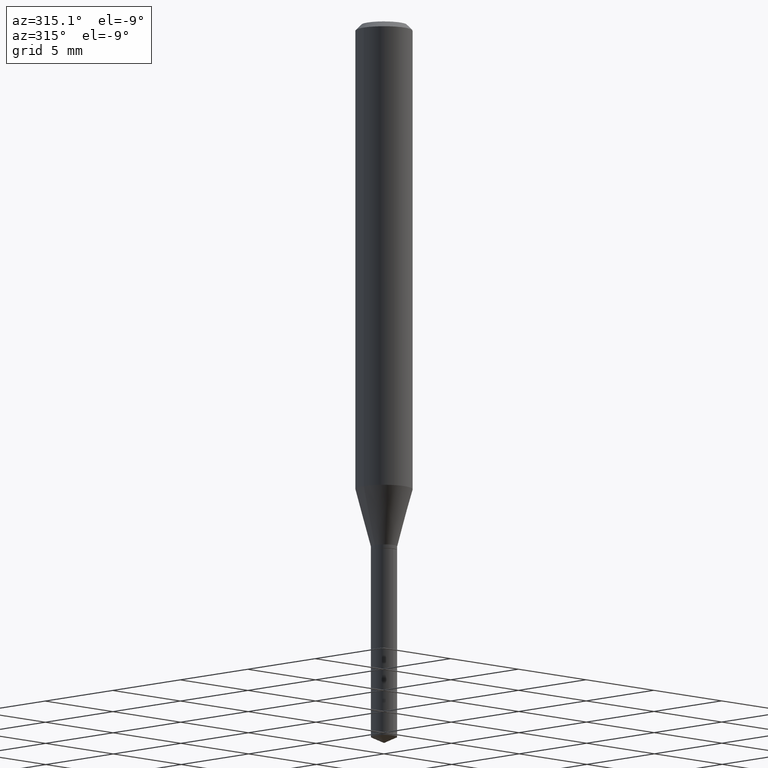
[diagram: clean part render]
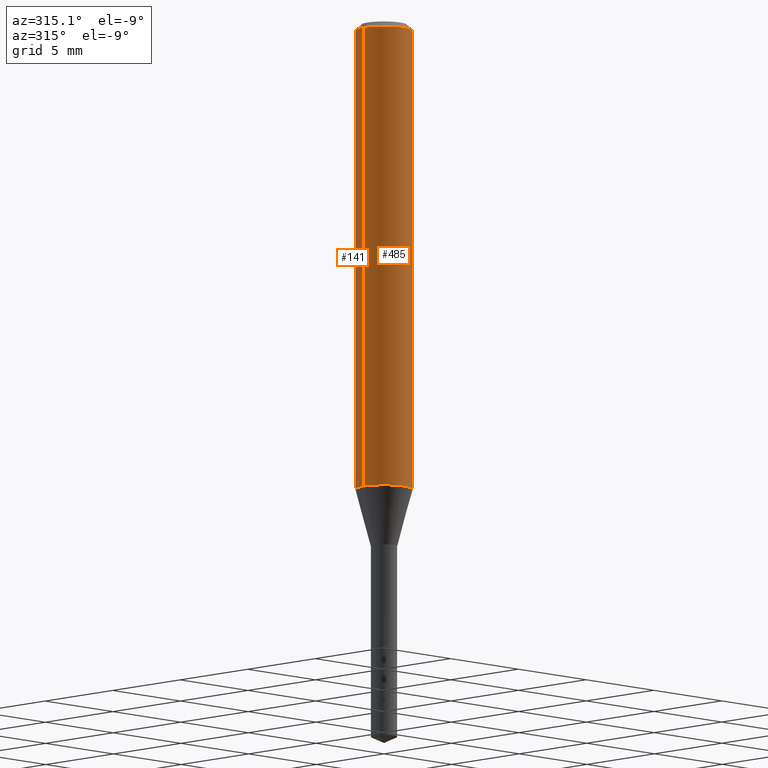
[diagram: same view with one multi-face feature highlighted, each face labeled with its STEP entity id]
A machine part, auxiliary view. The highlighted faces form ONE feature: a constant-radius fillet chain: 2 tangent blend faces with common blend radius 1.4999 mm. The faces share edges in the B-rep.
Their STEP definitions:
[1] entity #485 (Cylinder):
#16 = ORIENTED_EDGE ( 'NONE', *, *, #445, .T. ) ;
#27 = AXIS2_PLACEMENT_3D ( 'NONE', #227, #114, #221 ) ;
#59 = CIRCLE ( 'NONE', #480, 0.05904999999999999832 ) ;
#61 = DIRECTION ( 'NONE',  ( -2.445468806185136877E-29, 3.491481338843145188E-15, 1.000000000000000000 ) ) ;
#69 = CARTESIAN_POINT ( 'NONE',  ( -0.05904999999999999832, -1.289779722382777120E-15, -0.01181000000000007565 ) ) ;
#73 = DIRECTION ( 'NONE',  ( 1.000000000000000000, -6.982962677686266711E-15, 0.000000000000000000 ) ) ;
#114 = DIRECTION ( 'NONE',  ( -2.445468806185136597E-29, 3.491481338843145583E-15, 1.000000000000000000 ) ) ;
#115 = CARTESIAN_POINT ( 'NONE',  ( 0.05904999999999999832, -4.535783407291118600E-16, -0.01181000000000007565 ) ) ;
#135 = EDGE_CURVE ( 'NONE', #326, #201, #179, .T. ) ;
#148 = CIRCLE ( 'NONE', #372, 0.05905000000000011628 ) ;
#159 = FACE_OUTER_BOUND ( 'NONE', #390, .T. ) ;
#173 = DIRECTION ( 'NONE',  ( -2.445468806185136877E-29, 3.491481338843145188E-15, 1.000000000000000000 ) ) ;
#177 = ORIENTED_EDGE ( 'NONE', *, *, #135, .T. ) ;
#179 = LINE ( 'NONE', #401, #321 ) ;
#186 = VECTOR ( 'NONE', #173, 39.37007874015748143 ) ;
#189 = DIRECTION ( 'NONE',  ( 1.000000000000000000, -6.982962677686266711E-15, 0.000000000000000000 ) ) ;
#201 = VERTEX_POINT ( 'NONE', #115 ) ;
#221 = DIRECTION ( 'NONE',  ( 1.000000000000000000, -6.982962677686266711E-15, 4.876176775795935793E-29 ) ) ;
#227 = CARTESIAN_POINT ( 'NONE',  ( 0.000000000000000000, 0.000000000000000000, 0.000000000000000000 ) ) ;
#282 = ORIENTED_EDGE ( 'NONE', *, *, #377, .F. ) ;
#286 = ORIENTED_EDGE ( 'NONE', *, *, #329, .F. ) ;
#295 = DIRECTION ( 'NONE',  ( -2.445468806185136597E-29, 3.491481338843145583E-15, 1.000000000000000000 ) ) ;
#321 = VECTOR ( 'NONE', #61, 39.37007874015748143 ) ;
#326 = VERTEX_POINT ( 'NONE', #430 ) ;
#329 = EDGE_CURVE ( 'NONE', #431, #478, #427, .T. ) ;
#333 = CARTESIAN_POINT ( 'NONE',  ( 2.888098660104664642E-31, -4.123439461173780879E-17, -0.01181000000000007565 ) ) ;
#356 = CARTESIAN_POINT ( 'NONE',  ( -0.05905000000000006077, 4.195754854663395916E-16, -2.904631170795524694E-30 ) ) ;
#372 = AXIS2_PLACEMENT_3D ( 'NONE', #454, #449, #189 ) ;
#373 = CYLINDRICAL_SURFACE ( 'NONE', #27, 0.05905000000000006077 ) ;
#377 = EDGE_CURVE ( 'NONE', #478, #201, #59, .T. ) ;
#379 = CARTESIAN_POINT ( 'NONE',  ( -0.05905000000000011628, -2.957900535620157582E-15, -0.9673475792385526351 ) ) ;
#390 = EDGE_LOOP ( 'NONE', ( #286, #16, #177, #282 ) ) ;
#401 = CARTESIAN_POINT ( 'NONE',  ( 0.05905000000000006077, -4.123439461173744764E-16, 2.879382386107503023E-30 ) ) ;
#427 = LINE ( 'NONE', #356, #186 ) ;
#430 = CARTESIAN_POINT ( 'NONE',  ( 0.05905000000000011628, -3.789819967203871995E-15, -0.9673475792385526351 ) ) ;
#431 = VERTEX_POINT ( 'NONE', #379 ) ;
#445 = EDGE_CURVE ( 'NONE', #431, #326, #148, .T. ) ;
#449 = DIRECTION ( 'NONE',  ( -2.445468806185136597E-29, 3.491481338843145583E-15, 1.000000000000000000 ) ) ;
#454 = CARTESIAN_POINT ( 'NONE',  ( 2.365618329766585158E-29, -3.377476021086497075E-15, -0.9673475792385526351 ) ) ;
#478 = VERTEX_POINT ( 'NONE', #69 ) ;
#480 = AXIS2_PLACEMENT_3D ( 'NONE', #333, #295, #73 ) ;
#485 = ADVANCED_FACE ( 'NONE', ( #159 ), #373, .T. ) ;
[2] entity #141 (Cylinder):
#8 = DIRECTION ( 'NONE',  ( 1.000000000000000000, -6.982962677686266711E-15, 0.000000000000000000 ) ) ;
#37 = CARTESIAN_POINT ( 'NONE',  ( 2.888098660104664642E-31, -4.123439461173780879E-17, -0.01181000000000007565 ) ) ;
#44 = ORIENTED_EDGE ( 'NONE', *, *, #135, .F. ) ;
#61 = DIRECTION ( 'NONE',  ( -2.445468806185136877E-29, 3.491481338843145188E-15, 1.000000000000000000 ) ) ;
#69 = CARTESIAN_POINT ( 'NONE',  ( -0.05904999999999999832, -1.289779722382777120E-15, -0.01181000000000007565 ) ) ;
#77 = ORIENTED_EDGE ( 'NONE', *, *, #329, .T. ) ;
#98 = FACE_OUTER_BOUND ( 'NONE', #258, .T. ) ;
#115 = CARTESIAN_POINT ( 'NONE',  ( 0.05904999999999999832, -4.535783407291118600E-16, -0.01181000000000007565 ) ) ;
#135 = EDGE_CURVE ( 'NONE', #326, #201, #179, .T. ) ;
#141 = ADVANCED_FACE ( 'NONE', ( #98 ), #332, .T. ) ;
#173 = DIRECTION ( 'NONE',  ( -2.445468806185136877E-29, 3.491481338843145188E-15, 1.000000000000000000 ) ) ;
#179 = LINE ( 'NONE', #401, #321 ) ;
#183 = EDGE_CURVE ( 'NONE', #201, #478, #415, .T. ) ;
#186 = VECTOR ( 'NONE', #173, 39.37007874015748143 ) ;
#200 = AXIS2_PLACEMENT_3D ( 'NONE', #37, #222, #8 ) ;
#201 = VERTEX_POINT ( 'NONE', #115 ) ;
#222 = DIRECTION ( 'NONE',  ( -2.445468806185136597E-29, 3.491481338843145583E-15, 1.000000000000000000 ) ) ;
#225 = DIRECTION ( 'NONE',  ( -2.445468806185136597E-29, 3.491481338843145583E-15, 1.000000000000000000 ) ) ;
#228 = DIRECTION ( 'NONE',  ( 1.000000000000000000, -6.982962677686266711E-15, 0.000000000000000000 ) ) ;
#230 = DIRECTION ( 'NONE',  ( -2.445468806185136597E-29, 3.491481338843145583E-15, 1.000000000000000000 ) ) ;
#242 = ORIENTED_EDGE ( 'NONE', *, *, #291, .T. ) ;
#258 = EDGE_LOOP ( 'NONE', ( #242, #77, #444, #44 ) ) ;
#269 = DIRECTION ( 'NONE',  ( 1.000000000000000000, -6.982962677686266711E-15, 4.876176775795935793E-29 ) ) ;
#291 = EDGE_CURVE ( 'NONE', #326, #431, #466, .T. ) ;
#312 = AXIS2_PLACEMENT_3D ( 'NONE', #482, #225, #269 ) ;
#313 = AXIS2_PLACEMENT_3D ( 'NONE', #384, #230, #228 ) ;
#321 = VECTOR ( 'NONE', #61, 39.37007874015748143 ) ;
#326 = VERTEX_POINT ( 'NONE', #430 ) ;
#329 = EDGE_CURVE ( 'NONE', #431, #478, #427, .T. ) ;
#332 = CYLINDRICAL_SURFACE ( 'NONE', #312, 0.05905000000000006077 ) ;
#356 = CARTESIAN_POINT ( 'NONE',  ( -0.05905000000000006077, 4.195754854663395916E-16, -2.904631170795524694E-30 ) ) ;
#379 = CARTESIAN_POINT ( 'NONE',  ( -0.05905000000000011628, -2.957900535620157582E-15, -0.9673475792385526351 ) ) ;
#384 = CARTESIAN_POINT ( 'NONE',  ( 2.365618329766585158E-29, -3.377476021086497075E-15, -0.9673475792385526351 ) ) ;
#401 = CARTESIAN_POINT ( 'NONE',  ( 0.05905000000000006077, -4.123439461173744764E-16, 2.879382386107503023E-30 ) ) ;
#415 = CIRCLE ( 'NONE', #200, 0.05904999999999999832 ) ;
#427 = LINE ( 'NONE', #356, #186 ) ;
#430 = CARTESIAN_POINT ( 'NONE',  ( 0.05905000000000011628, -3.789819967203871995E-15, -0.9673475792385526351 ) ) ;
#431 = VERTEX_POINT ( 'NONE', #379 ) ;
#444 = ORIENTED_EDGE ( 'NONE', *, *, #183, .F. ) ;
#466 = CIRCLE ( 'NONE', #313, 0.05905000000000011628 ) ;
#478 = VERTEX_POINT ( 'NONE', #69 ) ;
#482 = CARTESIAN_POINT ( 'NONE',  ( 0.000000000000000000, 0.000000000000000000, 0.000000000000000000 ) ) ;